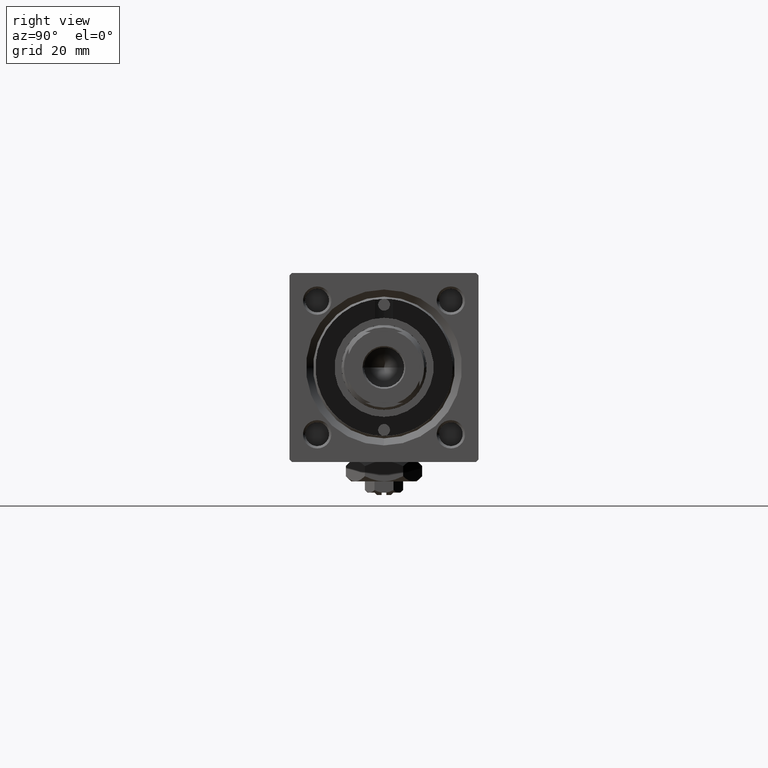
[diagram: clean part render]
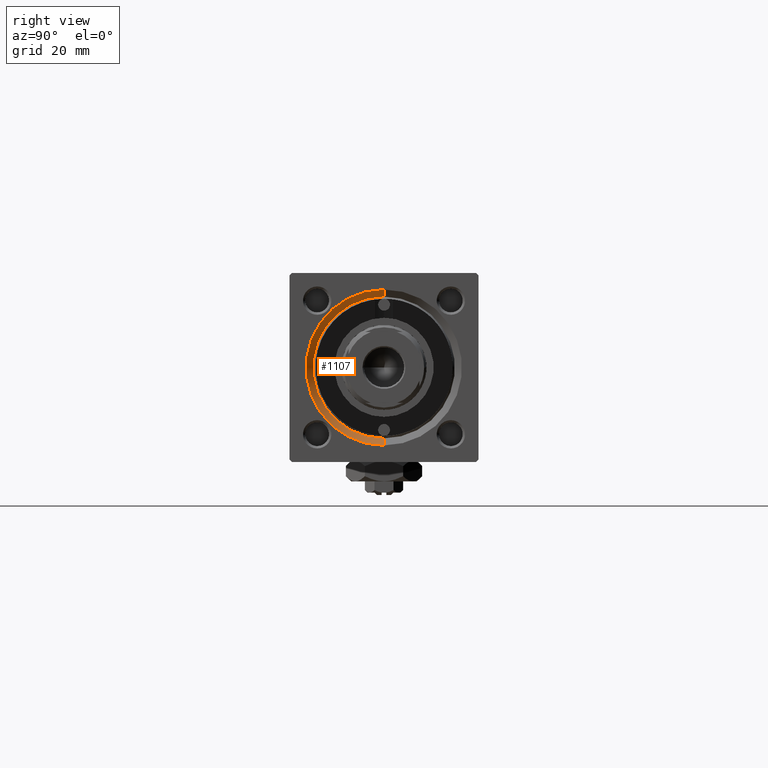
[diagram: same view with one face highlighted and labeled with its STEP entity id]
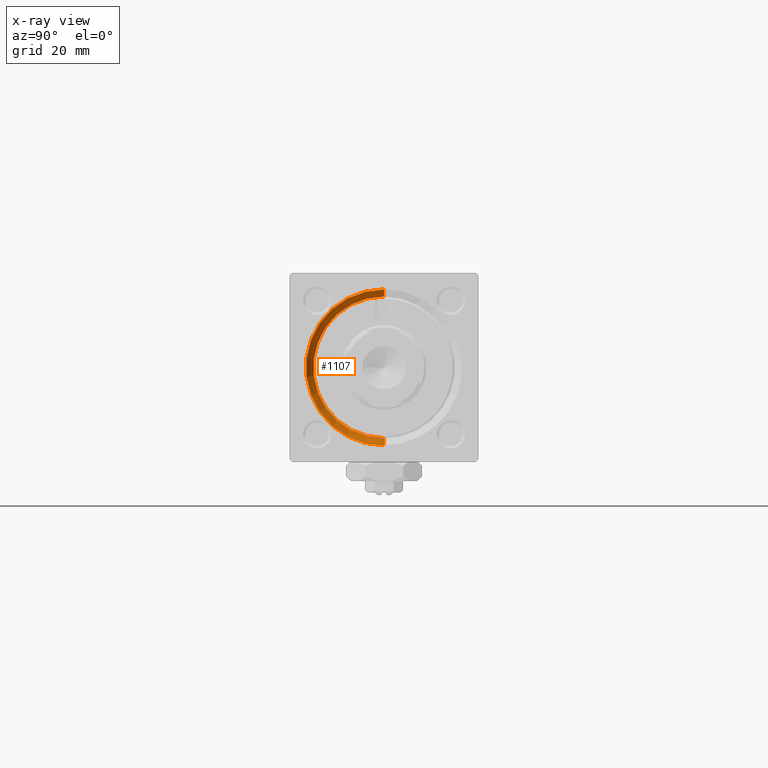
[diagram: x-ray of the same camera — body ghosted, the highlighted face saturated]
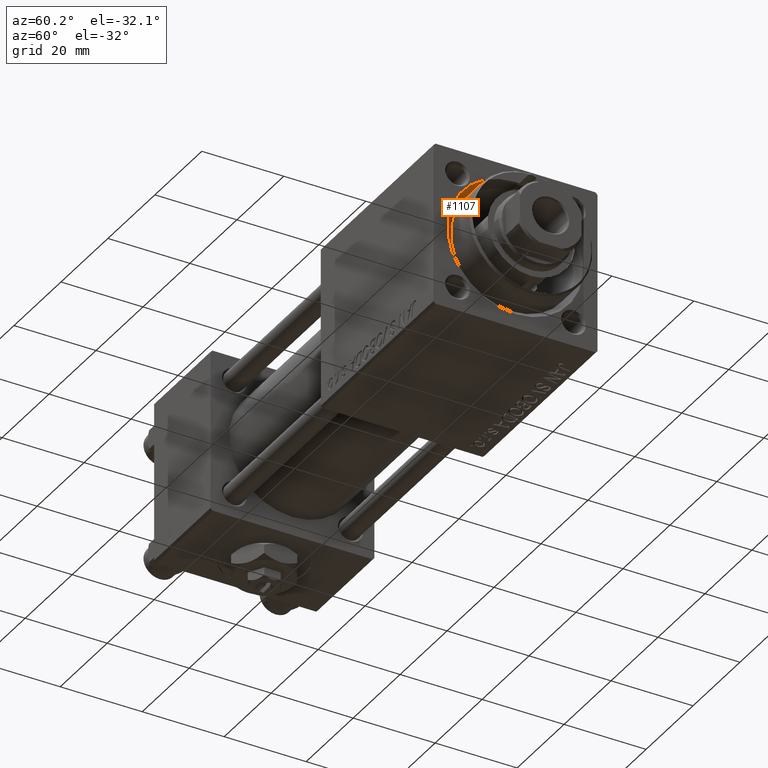
[diagram: same view with one face highlighted and labeled with its STEP entity id]
A machine part, right view. The second image highlights one B-rep face of the part: STEP entity #1107.
The next image is the same camera in x-ray: the body ghosted, the highlighted face saturated — about 0% of this face is hidden behind the body in this view.
A second angle (auxiliary view) of the same face is appended — the face is thin or edge-on in the first view.
In plain terms, the highlighted conical surface has half-angle 45 deg.
Its self-contained STEP definition (entity closure, byte-faithful):
#1107 = ADVANCED_FACE ( 'NONE', ( #37868 ), #49029, .F. ) ;
#1634 = DIRECTION ( 'NONE',  ( -1.000000000000000000, -0.000000000000000000, -0.000000000000000000 ) ) ;
#4273 = DIRECTION ( 'NONE',  ( 0.7071067811865474617, 8.659560562354932858E-17, 0.7071067811865474617 ) ) ;
#6189 = ORIENTED_EDGE ( 'NONE', *, *, #46791, .F. ) ;
#9623 = CIRCLE ( 'NONE', #31475, 15.00000000000000000 ) ;
#10304 = CARTESIAN_POINT ( 'NONE',  ( 117.5000000000000000, 1.836970198721029589E-15, 15.00000000000000000 ) ) ;
#10434 = AXIS2_PLACEMENT_3D ( 'NONE', #13985, #37614, #26594 ) ;
#10993 = EDGE_LOOP ( 'NONE', ( #37190, #44785, #46433, #6189 ) ) ;
#11724 = CARTESIAN_POINT ( 'NONE',  ( 119.0000000000000142, 0.000000000000000000, -16.50000000000001421 ) ) ;
#11936 = CARTESIAN_POINT ( 'NONE',  ( 119.0000000000000142, 2.020667218593134678E-15, 16.50000000000001421 ) ) ;
#12636 = CARTESIAN_POINT ( 'NONE',  ( 117.5000000000000000, 0.000000000000000000, -15.00000000000000000 ) ) ;
#13985 = CARTESIAN_POINT ( 'NONE',  ( 117.5000000000000000, 0.000000000000000000, 0.000000000000000000 ) ) ;
#14112 = CARTESIAN_POINT ( 'NONE',  ( 117.5000000000000000, 0.000000000000000000, -15.00000000000000000 ) ) ;
#14822 = AXIS2_PLACEMENT_3D ( 'NONE', #25537, #1634, #38384 ) ;
#16096 = CARTESIAN_POINT ( 'NONE',  ( 117.5000000000000000, 1.836970198721029589E-15, 15.00000000000000000 ) ) ;
#19802 = VECTOR ( 'NONE', #4273, 1000.000000000000114 ) ;
#21055 = CARTESIAN_POINT ( 'NONE',  ( 117.5000000000000000, 0.000000000000000000, 0.000000000000000000 ) ) ;
#22292 = EDGE_CURVE ( 'NONE', #45548, #30999, #9623, .T. ) ;
#25537 = CARTESIAN_POINT ( 'NONE',  ( 119.0000000000000142, 0.000000000000000000, 0.000000000000000000 ) ) ;
#25784 = DIRECTION ( 'NONE',  ( 0.000000000000000000, 0.000000000000000000, 1.000000000000000000 ) ) ;
#26002 = EDGE_CURVE ( 'NONE', #45548, #45491, #43949, .T. ) ;
#26068 = EDGE_CURVE ( 'NONE', #29661, #45491, #45847, .T. ) ;
#26594 = DIRECTION ( 'NONE',  ( 0.000000000000000000, 0.000000000000000000, -1.000000000000000000 ) ) ;
#28411 = DIRECTION ( 'NONE',  ( 0.7071067811865474617, 0.000000000000000000, -0.7071067811865474617 ) ) ;
#29661 = VERTEX_POINT ( 'NONE', #11724 ) ;
#30999 = VERTEX_POINT ( 'NONE', #14112 ) ;
#31475 = AXIS2_PLACEMENT_3D ( 'NONE', #21055, #49168, #25784 ) ;
#36021 = LINE ( 'NONE', #12636, #47366 ) ;
#37190 = ORIENTED_EDGE ( 'NONE', *, *, #22292, .F. ) ;
#37614 = DIRECTION ( 'NONE',  ( 1.000000000000000000, 0.000000000000000000, 0.000000000000000000 ) ) ;
#37868 = FACE_OUTER_BOUND ( 'NONE', #10993, .T. ) ;
#38384 = DIRECTION ( 'NONE',  ( 0.000000000000000000, 0.000000000000000000, 1.000000000000000000 ) ) ;
#43949 = LINE ( 'NONE', #16096, #19802 ) ;
#44785 = ORIENTED_EDGE ( 'NONE', *, *, #26002, .T. ) ;
#45491 = VERTEX_POINT ( 'NONE', #11936 ) ;
#45548 = VERTEX_POINT ( 'NONE', #10304 ) ;
#45847 = CIRCLE ( 'NONE', #14822, 16.50000000000001421 ) ;
#46433 = ORIENTED_EDGE ( 'NONE', *, *, #26068, .F. ) ;
#46791 = EDGE_CURVE ( 'NONE', #30999, #29661, #36021, .T. ) ;
#47366 = VECTOR ( 'NONE', #28411, 1000.000000000000114 ) ;
#49029 = CONICAL_SURFACE ( 'NONE', #10434, 15.00000000000000000, 0.7853981633974482790 ) ;
#49168 = DIRECTION ( 'NONE',  ( 1.000000000000000000, 0.000000000000000000, 0.000000000000000000 ) ) ;